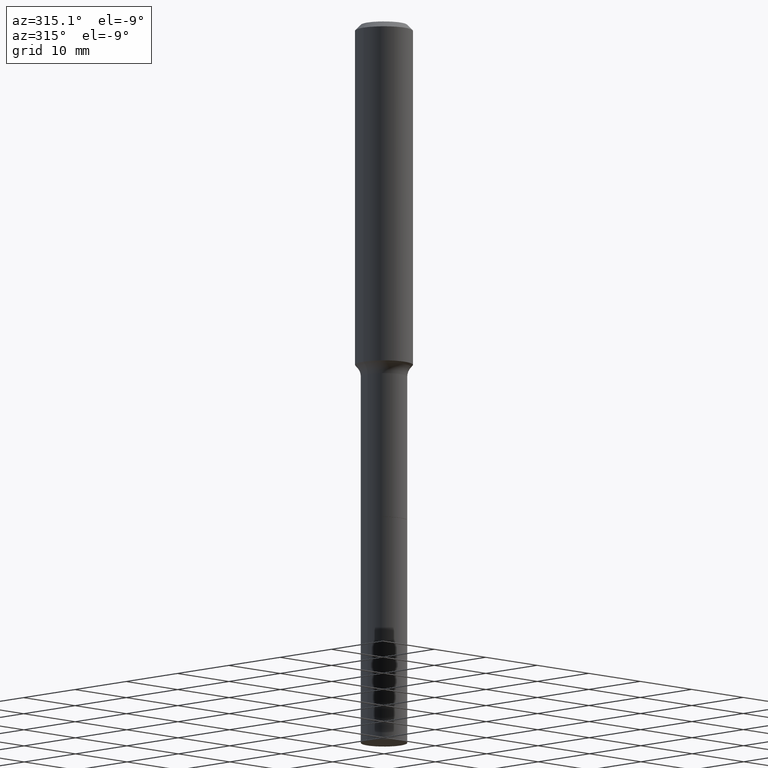
[diagram: clean part render]
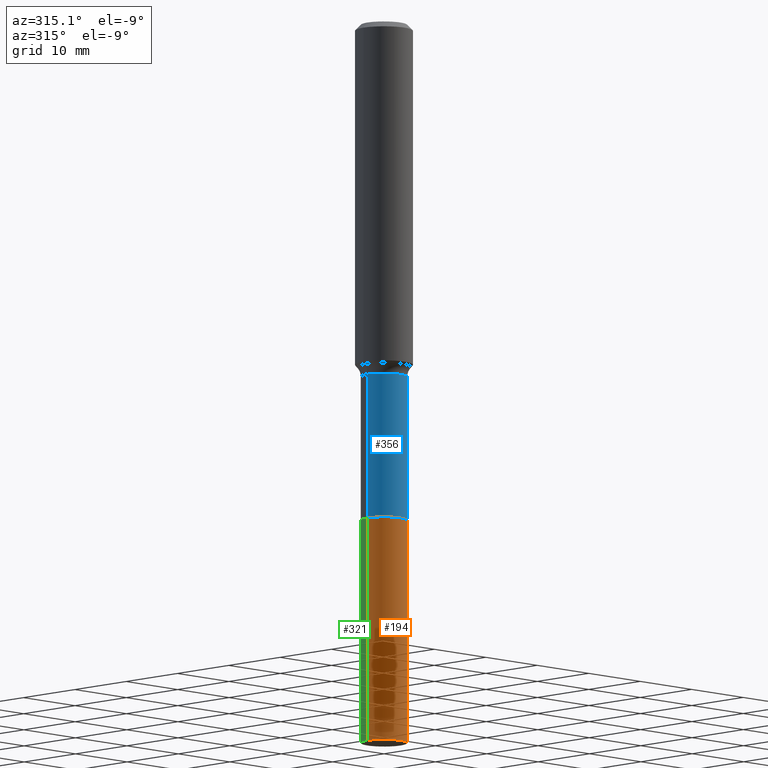
[diagram: same view with three faces highlighted in distinct colors, each labeled with its STEP entity id]
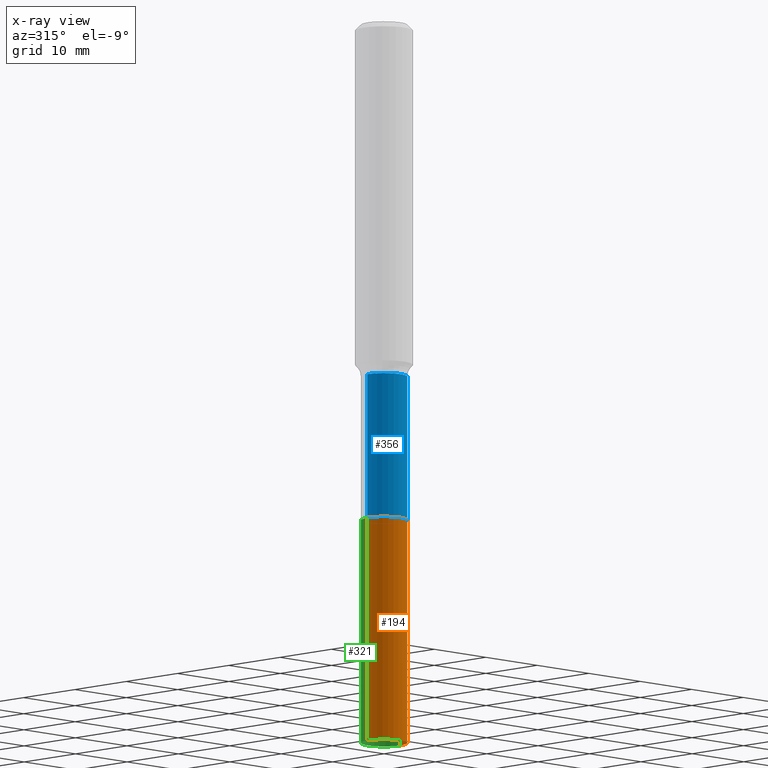
[diagram: x-ray of the same camera — body ghosted, the three highlighted faces saturated]
A machine part, auxiliary view with three faces highlighted in distinct colors.
The next image is the same camera in x-ray (body ghosted, the three faces saturated) — at least one of them is partly hidden behind the body in this view.
Their STEP definitions:

[orange] entity #194 — the highlighted cylindrical surface (edge-blend (fillet) strip) has radius 3.2004 mm, axis along (-0, 0, 1).
#22 = CIRCLE ( 'NONE', #275, 0.1260000000000000009 ) ;
#26 = EDGE_CURVE ( 'NONE', #432, #465, #352, .T. ) ;
#29 = VECTOR ( 'NONE', #118, 39.37007874015748143 ) ;
#37 = CARTESIAN_POINT ( 'NONE',  ( -0.1260000000000001119, -8.591070950579098861E-15, -2.717000000000000082 ) ) ;
#40 = CARTESIAN_POINT ( 'NONE',  ( 6.644338746405015317E-29, -9.486354797636825890E-15, -2.717000000000000082 ) ) ;
#87 = AXIS2_PLACEMENT_3D ( 'NONE', #249, #288, #209 ) ;
#113 = EDGE_CURVE ( 'NONE', #392, #465, #22, .T. ) ;
#118 = DIRECTION ( 'NONE',  ( -2.445468806185136877E-29, 3.491481338843145188E-15, 1.000000000000000000 ) ) ;
#194 = ADVANCED_FACE ( 'NONE', ( #295 ), #497, .T. ) ;
#204 = DIRECTION ( 'NONE',  ( -2.445468806185136597E-29, 3.491481338843145583E-15, 1.000000000000000000 ) ) ;
#209 = DIRECTION ( 'NONE',  ( 1.000000000000000000, -6.982962677686265133E-15, 0.000000000000000000 ) ) ;
#211 = VERTEX_POINT ( 'NONE', #423 ) ;
#221 = ORIENTED_EDGE ( 'NONE', *, *, #337, .T. ) ;
#249 = CARTESIAN_POINT ( 'NONE',  ( 6.644338746405015317E-29, -9.486354797636825890E-15, -2.717000000000000082 ) ) ;
#255 = CARTESIAN_POINT ( 'NONE',  ( 0.1260000000000002507, -1.462581532841393592E-14, -3.937000000000000277 ) ) ;
#266 = CARTESIAN_POINT ( 'NONE',  ( 0.1260000000000001119, -1.036620809502529682E-14, -2.717000000000000082 ) ) ;
#275 = AXIS2_PLACEMENT_3D ( 'NONE', #40, #320, #477 ) ;
#279 = LINE ( 'NONE', #37, #29 ) ;
#288 = DIRECTION ( 'NONE',  ( -2.445468806185136597E-29, 3.491481338843145583E-15, 1.000000000000000000 ) ) ;
#295 = FACE_OUTER_BOUND ( 'NONE', #496, .T. ) ;
#299 = CIRCLE ( 'NONE', #406, 0.1260000000000002507 ) ;
#301 = EDGE_CURVE ( 'NONE', #211, #392, #279, .T. ) ;
#320 = DIRECTION ( 'NONE',  ( -2.445468806185136597E-29, 3.491481338843145583E-15, 1.000000000000000000 ) ) ;
#331 = ORIENTED_EDGE ( 'NONE', *, *, #113, .F. ) ;
#337 = EDGE_CURVE ( 'NONE', #211, #432, #299, .T. ) ;
#352 = LINE ( 'NONE', #266, #498 ) ;
#377 = ORIENTED_EDGE ( 'NONE', *, *, #301, .F. ) ;
#392 = VERTEX_POINT ( 'NONE', #425 ) ;
#406 = AXIS2_PLACEMENT_3D ( 'NONE', #453, #204, #483 ) ;
#423 = CARTESIAN_POINT ( 'NONE',  ( -0.1260000000000002507, -1.072087456727341526E-14, -3.937000000000000277 ) ) ;
#425 = CARTESIAN_POINT ( 'NONE',  ( -0.1260000000000000009, -1.072087456727341683E-14, -2.717000000000000082 ) ) ;
#426 = CARTESIAN_POINT ( 'NONE',  ( 0.1260000000000000009, -1.036620809502529682E-14, -2.717000000000000082 ) ) ;
#432 = VERTEX_POINT ( 'NONE', #255 ) ;
#453 = CARTESIAN_POINT ( 'NONE',  ( 9.627810689950883669E-29, -1.374596203102546341E-14, -3.937000000000000277 ) ) ;
#465 = VERTEX_POINT ( 'NONE', #426 ) ;
#477 = DIRECTION ( 'NONE',  ( 1.000000000000000000, -6.982962677686270655E-15, 0.000000000000000000 ) ) ;
#483 = DIRECTION ( 'NONE',  ( 1.000000000000000000, -6.982962677686273021E-15, 0.000000000000000000 ) ) ;
#495 = ORIENTED_EDGE ( 'NONE', *, *, #26, .T. ) ;
#496 = EDGE_LOOP ( 'NONE', ( #377, #221, #495, #331 ) ) ;
#497 = CYLINDRICAL_SURFACE ( 'NONE', #87, 0.1260000000000001119 ) ;
#498 = VECTOR ( 'NONE', #506, 39.37007874015748143 ) ;
#506 = DIRECTION ( 'NONE',  ( -2.445468806185136877E-29, 3.491481338843145188E-15, 1.000000000000000000 ) ) ;

[blue] entity #356 — the highlighted cylindrical surface (edge-blend (fillet) strip) has radius 3.2004 mm, axis along (-0, 0, 1).
#15 = FACE_OUTER_BOUND ( 'NONE', #135, .T. ) ;
#31 = VERTEX_POINT ( 'NONE', #510 ) ;
#60 = CARTESIAN_POINT ( 'NONE',  ( 0.1259999999999999454, -8.798532973884691559E-16, 6.143982737502876745E-30 ) ) ;
#66 = VECTOR ( 'NONE', #181, 39.37007874015748143 ) ;
#71 = DIRECTION ( 'NONE',  ( 1.000000000000000000, -6.982962677686269077E-15, 0.000000000000000000 ) ) ;
#78 = DIRECTION ( 'NONE',  ( -2.445468806185136877E-29, 3.491481338843145188E-15, 1.000000000000000000 ) ) ;
#91 = CYLINDRICAL_SURFACE ( 'NONE', #115, 0.1259999999999999454 ) ;
#93 = CARTESIAN_POINT ( 'NONE',  ( 0.1260000000000000009, -1.036446235435587453E-14, -2.716499999999999915 ) ) ;
#109 = CIRCLE ( 'NONE', #124, 0.1260000000000000009 ) ;
#115 = AXIS2_PLACEMENT_3D ( 'NONE', #176, #210, #172 ) ;
#120 = DIRECTION ( 'NONE',  ( 1.000000000000000000, -6.982962677686270655E-15, 0.000000000000000000 ) ) ;
#124 = AXIS2_PLACEMENT_3D ( 'NONE', #514, #317, #120 ) ;
#135 = EDGE_LOOP ( 'NONE', ( #492, #232, #490, #486 ) ) ;
#172 = DIRECTION ( 'NONE',  ( 1.000000000000000000, -6.982962677686265922E-15, 4.876176775795935793E-29 ) ) ;
#176 = CARTESIAN_POINT ( 'NONE',  ( 0.000000000000000000, 0.000000000000000000, 0.000000000000000000 ) ) ;
#179 = VERTEX_POINT ( 'NONE', #93 ) ;
#181 = DIRECTION ( 'NONE',  ( -2.445468806185136877E-29, 3.491481338843145188E-15, 1.000000000000000000 ) ) ;
#210 = DIRECTION ( 'NONE',  ( -2.445468806185136597E-29, 3.491481338843145583E-15, 1.000000000000000000 ) ) ;
#217 = CIRCLE ( 'NONE', #440, 0.1259999999999998899 ) ;
#226 = VERTEX_POINT ( 'NONE', #328 ) ;
#232 = ORIENTED_EDGE ( 'NONE', *, *, #262, .T. ) ;
#262 = EDGE_CURVE ( 'NONE', #300, #179, #109, .T. ) ;
#277 = LINE ( 'NONE', #441, #387 ) ;
#300 = VERTEX_POINT ( 'NONE', #478 ) ;
#309 = EDGE_CURVE ( 'NONE', #300, #31, #277, .T. ) ;
#317 = DIRECTION ( 'NONE',  ( -2.445468806185136597E-29, 3.491481338843145583E-15, 1.000000000000000000 ) ) ;
#328 = CARTESIAN_POINT ( 'NONE',  ( 0.1259999999999998899, -7.614920800016896756E-15, -1.929000000000000048 ) ) ;
#350 = DIRECTION ( 'NONE',  ( -2.445468806185136597E-29, 3.491481338843145583E-15, 1.000000000000000000 ) ) ;
#356 = ADVANCED_FACE ( 'NONE', ( #15 ), #91, .T. ) ;
#362 = CARTESIAN_POINT ( 'NONE',  ( 4.717309327131129015E-29, -6.735067502628427403E-15, -1.929000000000000048 ) ) ;
#385 = LINE ( 'NONE', #60, #66 ) ;
#387 = VECTOR ( 'NONE', #78, 39.37007874015748143 ) ;
#405 = EDGE_CURVE ( 'NONE', #31, #226, #217, .T. ) ;
#440 = AXIS2_PLACEMENT_3D ( 'NONE', #362, #350, #71 ) ;
#441 = CARTESIAN_POINT ( 'NONE',  ( -0.1259999999999999454, 8.952838470577258461E-16, -6.197858213721179206E-30 ) ) ;
#455 = EDGE_CURVE ( 'NONE', #179, #226, #385, .T. ) ;
#478 = CARTESIAN_POINT ( 'NONE',  ( -0.1260000000000000009, -7.214554432740189260E-15, -2.716499999999999915 ) ) ;
#486 = ORIENTED_EDGE ( 'NONE', *, *, #405, .F. ) ;
#490 = ORIENTED_EDGE ( 'NONE', *, *, #455, .T. ) ;
#492 = ORIENTED_EDGE ( 'NONE', *, *, #309, .F. ) ;
#510 = CARTESIAN_POINT ( 'NONE',  ( -0.1259999999999998899, -7.214554432740190838E-15, -1.929000000000000048 ) ) ;
#514 = CARTESIAN_POINT ( 'NONE',  ( 6.643116012001922516E-29, -9.484609056967403598E-15, -2.716499999999999915 ) ) ;

[green] entity #321 — the highlighted cylindrical surface (edge-blend (fillet) strip) has radius 3.2004 mm, axis along (-0, 0, 1).
#9 = CIRCLE ( 'NONE', #343, 0.1260000000000000009 ) ;
#26 = EDGE_CURVE ( 'NONE', #432, #465, #352, .T. ) ;
#27 = ORIENTED_EDGE ( 'NONE', *, *, #301, .T. ) ;
#29 = VECTOR ( 'NONE', #118, 39.37007874015748143 ) ;
#37 = CARTESIAN_POINT ( 'NONE',  ( -0.1260000000000001119, -8.591070950579098861E-15, -2.717000000000000082 ) ) ;
#43 = DIRECTION ( 'NONE',  ( 1.000000000000000000, -6.982962677686270655E-15, 0.000000000000000000 ) ) ;
#62 = ORIENTED_EDGE ( 'NONE', *, *, #327, .F. ) ;
#82 = AXIS2_PLACEMENT_3D ( 'NONE', #252, #335, #131 ) ;
#118 = DIRECTION ( 'NONE',  ( -2.445468806185136877E-29, 3.491481338843145188E-15, 1.000000000000000000 ) ) ;
#131 = DIRECTION ( 'NONE',  ( 1.000000000000000000, -6.982962677686273021E-15, 0.000000000000000000 ) ) ;
#149 = ORIENTED_EDGE ( 'NONE', *, *, #163, .T. ) ;
#163 = EDGE_CURVE ( 'NONE', #432, #211, #200, .T. ) ;
#200 = CIRCLE ( 'NONE', #82, 0.1260000000000002507 ) ;
#211 = VERTEX_POINT ( 'NONE', #423 ) ;
#228 = AXIS2_PLACEMENT_3D ( 'NONE', #481, #254, #243 ) ;
#243 = DIRECTION ( 'NONE',  ( 1.000000000000000000, -6.982962677686265133E-15, 0.000000000000000000 ) ) ;
#252 = CARTESIAN_POINT ( 'NONE',  ( 9.627810689950883669E-29, -1.374596203102546341E-14, -3.937000000000000277 ) ) ;
#253 = EDGE_LOOP ( 'NONE', ( #149, #27, #62, #274 ) ) ;
#254 = DIRECTION ( 'NONE',  ( -2.445468806185136597E-29, 3.491481338843145583E-15, 1.000000000000000000 ) ) ;
#255 = CARTESIAN_POINT ( 'NONE',  ( 0.1260000000000002507, -1.462581532841393592E-14, -3.937000000000000277 ) ) ;
#266 = CARTESIAN_POINT ( 'NONE',  ( 0.1260000000000001119, -1.036620809502529682E-14, -2.717000000000000082 ) ) ;
#274 = ORIENTED_EDGE ( 'NONE', *, *, #26, .F. ) ;
#279 = LINE ( 'NONE', #37, #29 ) ;
#289 = CARTESIAN_POINT ( 'NONE',  ( 6.644338746405015317E-29, -9.486354797636825890E-15, -2.717000000000000082 ) ) ;
#297 = CYLINDRICAL_SURFACE ( 'NONE', #228, 0.1260000000000001119 ) ;
#301 = EDGE_CURVE ( 'NONE', #211, #392, #279, .T. ) ;
#321 = ADVANCED_FACE ( 'NONE', ( #404 ), #297, .T. ) ;
#324 = DIRECTION ( 'NONE',  ( -2.445468806185136597E-29, 3.491481338843145583E-15, 1.000000000000000000 ) ) ;
#327 = EDGE_CURVE ( 'NONE', #465, #392, #9, .T. ) ;
#335 = DIRECTION ( 'NONE',  ( -2.445468806185136597E-29, 3.491481338843145583E-15, 1.000000000000000000 ) ) ;
#343 = AXIS2_PLACEMENT_3D ( 'NONE', #289, #324, #43 ) ;
#352 = LINE ( 'NONE', #266, #498 ) ;
#392 = VERTEX_POINT ( 'NONE', #425 ) ;
#404 = FACE_OUTER_BOUND ( 'NONE', #253, .T. ) ;
#423 = CARTESIAN_POINT ( 'NONE',  ( -0.1260000000000002507, -1.072087456727341526E-14, -3.937000000000000277 ) ) ;
#425 = CARTESIAN_POINT ( 'NONE',  ( -0.1260000000000000009, -1.072087456727341683E-14, -2.717000000000000082 ) ) ;
#426 = CARTESIAN_POINT ( 'NONE',  ( 0.1260000000000000009, -1.036620809502529682E-14, -2.717000000000000082 ) ) ;
#432 = VERTEX_POINT ( 'NONE', #255 ) ;
#465 = VERTEX_POINT ( 'NONE', #426 ) ;
#481 = CARTESIAN_POINT ( 'NONE',  ( 6.644338746405015317E-29, -9.486354797636825890E-15, -2.717000000000000082 ) ) ;
#498 = VECTOR ( 'NONE', #506, 39.37007874015748143 ) ;
#506 = DIRECTION ( 'NONE',  ( -2.445468806185136877E-29, 3.491481338843145188E-15, 1.000000000000000000 ) ) ;